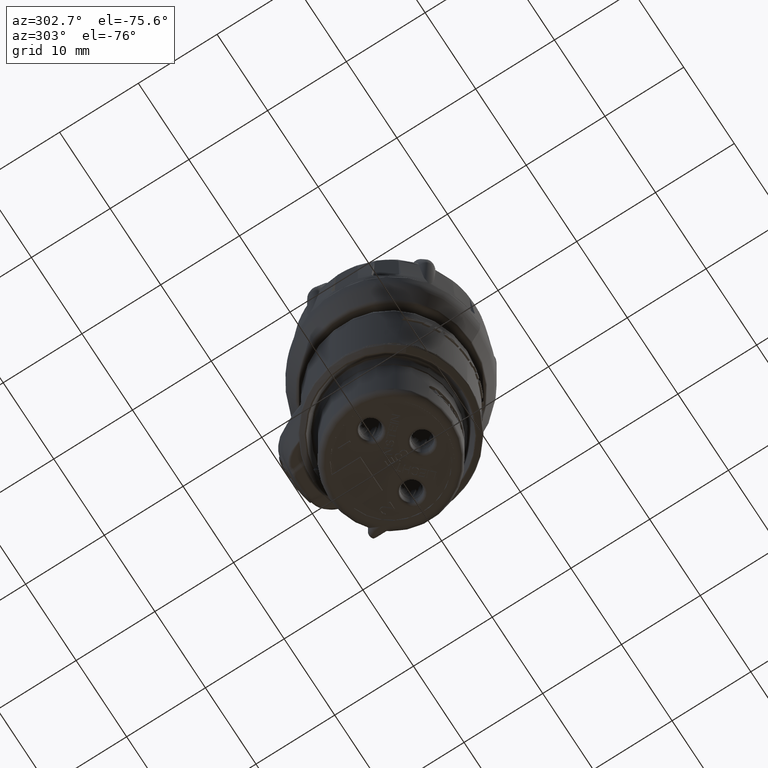
[diagram: clean part render]
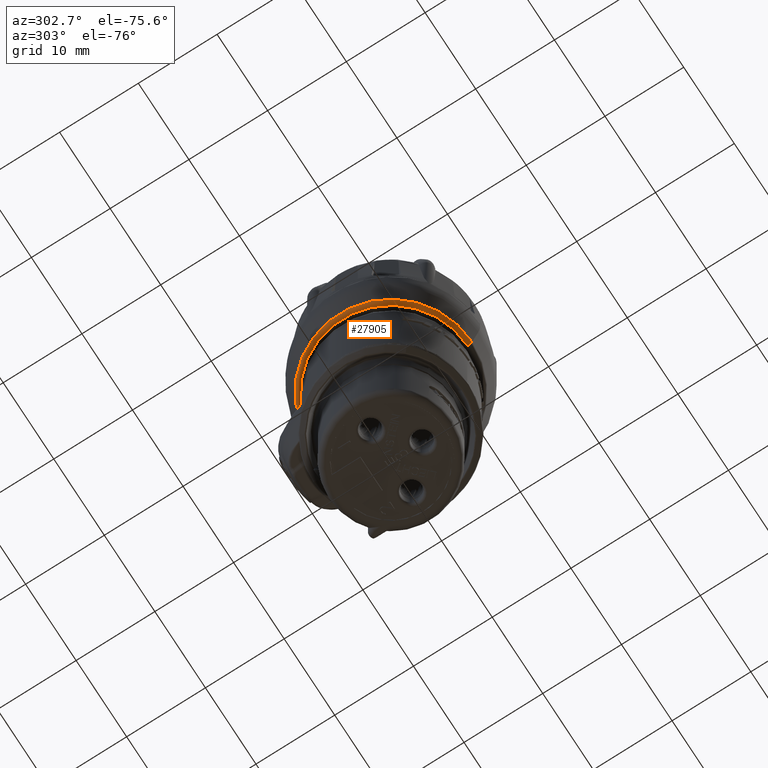
[diagram: same view with one face highlighted and labeled with its STEP entity id]
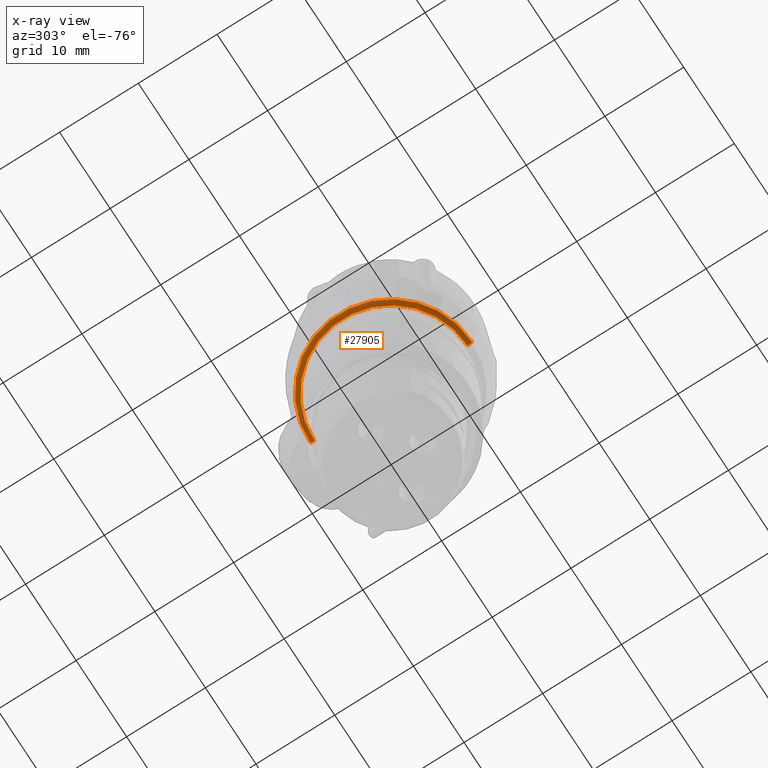
[diagram: x-ray of the same camera — body ghosted, the highlighted face saturated]
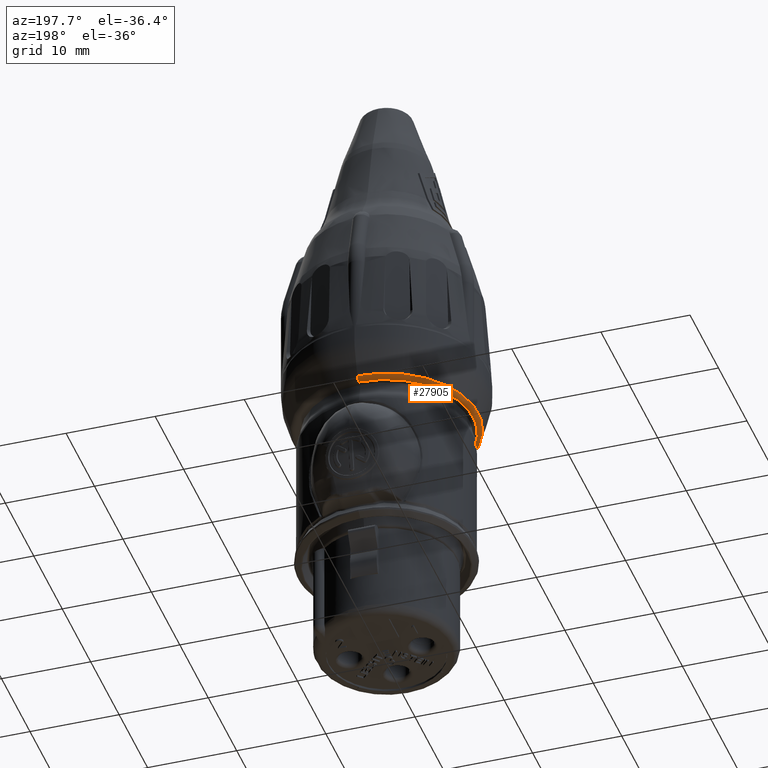
[diagram: same view with one face highlighted and labeled with its STEP entity id]
A machine part, auxiliary view. The second image highlights one B-rep face of the part: STEP entity #27905.
The next image is the same camera in x-ray: the body ghosted, the highlighted face saturated — about 11% of this face is hidden behind the body in this view.
A second angle (auxiliary view) of the same face is appended — the face is thin or edge-on in the first view.
In plain terms, the highlighted toroidal blend (fillet) surface has major radius 9.715 mm and minor (blend) radius 0.6 mm.
Its self-contained STEP definition (entity closure, byte-faithful):
#3802=CARTESIAN_POINT('',(0.E0,0.E0,1.53E1));
#3803=DIRECTION('',(0.E0,0.E0,1.E0));
#3804=DIRECTION('',(0.E0,1.E0,0.E0));
#3805=AXIS2_PLACEMENT_3D('',#3802,#3803,#3804);
#3807=CARTESIAN_POINT('',(0.E0,9.715E0,1.59E1));
#3808=DIRECTION('',(-1.E0,0.E0,0.E0));
#3809=DIRECTION('',(0.E0,9.579371062627E-1,-2.869782229457E-1));
#3810=AXIS2_PLACEMENT_3D('',#3807,#3808,#3809);
#3812=CARTESIAN_POINT('',(0.E0,-9.715E0,1.59E1));
#3813=DIRECTION('',(1.E0,0.E0,0.E0));
#3814=DIRECTION('',(0.E0,-9.579371062627E-1,-2.869782229457E-1));
#3815=AXIS2_PLACEMENT_3D('',#3812,#3813,#3814);
#3822=CARTESIAN_POINT('',(0.E0,0.E0,1.572781306623E1));
#3823=DIRECTION('',(0.E0,0.E0,1.E0));
#3824=DIRECTION('',(0.E0,1.E0,0.E0));
#3825=AXIS2_PLACEMENT_3D('',#3822,#3823,#3824);
#20151=CARTESIAN_POINT('',(0.E0,1.028976226376E1,1.572781306623E1));
#20152=CARTESIAN_POINT('',(0.E0,9.715E0,1.53E1));
#20153=VERTEX_POINT('',#20151);
#20154=VERTEX_POINT('',#20152);
#20155=CARTESIAN_POINT('',(0.E0,-1.028976226376E1,1.572781306623E1));
#20156=CARTESIAN_POINT('',(0.E0,-9.715E0,1.53E1));
#20157=VERTEX_POINT('',#20155);
#20158=VERTEX_POINT('',#20156);
#27893=CARTESIAN_POINT('',(0.E0,0.E0,1.59E1));
#27894=DIRECTION('',(0.E0,0.E0,1.E0));
#27895=DIRECTION('',(0.E0,-1.E0,0.E0));
#27896=AXIS2_PLACEMENT_3D('',#27893,#27894,#27895);
#27897=TOROIDAL_SURFACE('',#27896,9.715E0,6.E-1);
#27898=ORIENTED_EDGE('',*,*,#27876,.F.);
#27900=ORIENTED_EDGE('',*,*,#27899,.T.);
#27901=ORIENTED_EDGE('',*,*,#27879,.T.);
#27902=ORIENTED_EDGE('',*,*,#27854,.F.);
#27903=EDGE_LOOP('',(#27898,#27900,#27901,#27902));
#27904=FACE_OUTER_BOUND('',#27903,.F.);
#3806=CIRCLE('',#3805,9.715E0);
#3811=CIRCLE('',#3810,6.E-1);
#3816=CIRCLE('',#3815,6.E-1);
#3826=CIRCLE('',#3825,1.028976226376E1);
#27854=EDGE_CURVE('',#20154,#20158,#3806,.T.);
#27876=EDGE_CURVE('',#20153,#20154,#3811,.T.);
#27879=EDGE_CURVE('',#20157,#20158,#3816,.T.);
#27899=EDGE_CURVE('',#20153,#20157,#3826,.T.);
#27905=ADVANCED_FACE('',(#27904),#27897,.T.);